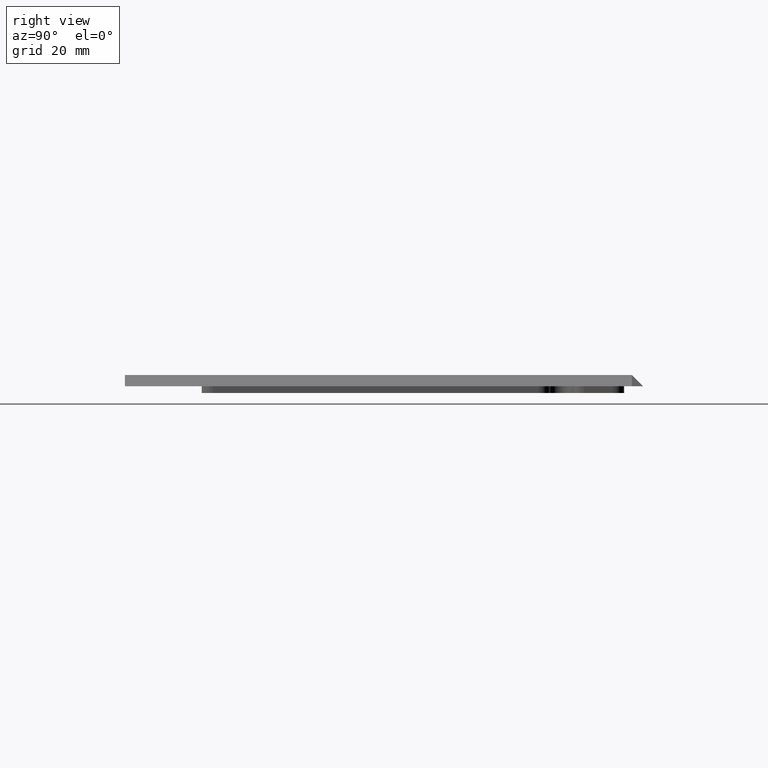
[diagram: clean part render]
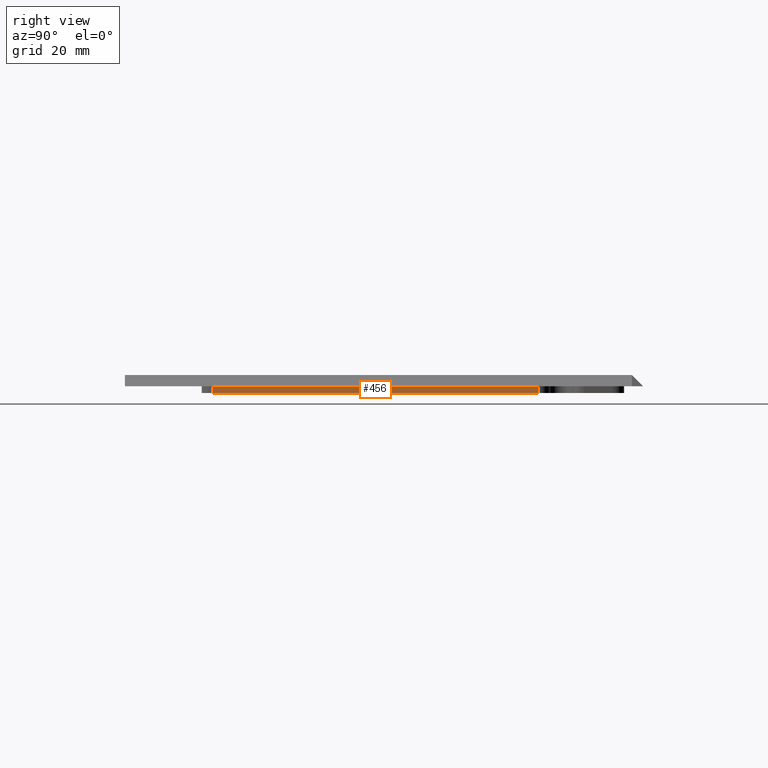
[diagram: same view with one face highlighted and labeled with its STEP entity id]
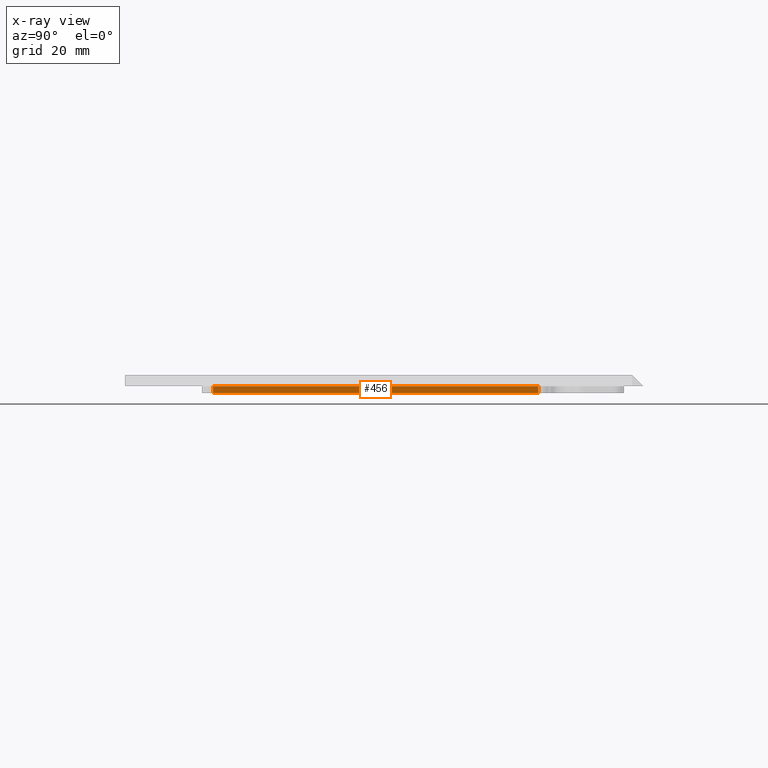
[diagram: x-ray of the same camera — body ghosted, the highlighted face saturated]
A machine part, right view. The second image highlights one B-rep face of the part: STEP entity #456.
The next image is the same camera in x-ray: the body ghosted, the highlighted face saturated — about 0% of this face is hidden behind the body in this view.
In plain terms, the highlighted planar face has unit normal (-1, -0, 0).
Its self-contained STEP definition (entity closure, byte-faithful):
#25 = FACE_OUTER_BOUND ( 'NONE', #1350, .T. ) ;
#72 = DIRECTION ( 'NONE',  ( 3.227392513445222800E-016, -1.000000000000000000, 0.0000000000000000000 ) ) ;
#120 = ORIENTED_EDGE ( 'NONE', *, *, #1183, .F. ) ;
#161 = VECTOR ( 'NONE', #876, 1000.000000000000000 ) ;
#201 = AXIS2_PLACEMENT_3D ( 'NONE', #353, #746, #1607 ) ;
#243 = DIRECTION ( 'NONE',  ( -0.0000000000000000000, -0.0000000000000000000, 1.000000000000000000 ) ) ;
#262 = VECTOR ( 'NONE', #1486, 1000.000000000000000 ) ;
#353 = CARTESIAN_POINT ( 'NONE',  ( 133.2499999999999700, 109.3499999999999900, -4.780000000000000200 ) ) ;
#456 = ADVANCED_FACE ( 'NONE', ( #25 ), #614, .F. ) ;
#458 = CARTESIAN_POINT ( 'NONE',  ( 133.2500000000000000, 23.34999999999999800, -4.780000000000000200 ) ) ;
#463 = EDGE_CURVE ( 'NONE', #904, #1455, #557, .T. ) ;
#506 = CARTESIAN_POINT ( 'NONE',  ( 133.2499999999999700, 109.3499999999999900, -3.000000000000000000 ) ) ;
#524 = EDGE_CURVE ( 'NONE', #1232, #1455, #959, .T. ) ;
#557 = LINE ( 'NONE', #867, #262 ) ;
#614 = PLANE ( 'NONE',  #201 ) ;
#701 = CARTESIAN_POINT ( 'NONE',  ( 133.2499999999999700, 109.3499999999999900, -4.780000000000000200 ) ) ;
#719 = EDGE_CURVE ( 'NONE', #1413, #904, #1366, .T. ) ;
#746 = DIRECTION ( 'NONE',  ( -1.000000000000000000, -3.227392513445222800E-016, 0.0000000000000000000 ) ) ;
#760 = VECTOR ( 'NONE', #72, 1000.000000000000000 ) ;
#867 = CARTESIAN_POINT ( 'NONE',  ( 133.2499999999999700, 109.3499999999999900, -3.000000000000000000 ) ) ;
#876 = DIRECTION ( 'NONE',  ( -0.0000000000000000000, -0.0000000000000000000, 1.000000000000000000 ) ) ;
#904 = VERTEX_POINT ( 'NONE', #506 ) ;
#939 = ORIENTED_EDGE ( 'NONE', *, *, #719, .T. ) ;
#959 = LINE ( 'NONE', #1377, #1522 ) ;
#1045 = LINE ( 'NONE', #1568, #760 ) ;
#1183 = EDGE_CURVE ( 'NONE', #1413, #1232, #1045, .T. ) ;
#1209 = ORIENTED_EDGE ( 'NONE', *, *, #524, .F. ) ;
#1232 = VERTEX_POINT ( 'NONE', #458 ) ;
#1350 = EDGE_LOOP ( 'NONE', ( #1398, #1209, #120, #939 ) ) ;
#1366 = LINE ( 'NONE', #1615, #161 ) ;
#1377 = CARTESIAN_POINT ( 'NONE',  ( 133.2500000000000000, 23.34999999999999800, -4.780000000000000200 ) ) ;
#1398 = ORIENTED_EDGE ( 'NONE', *, *, #463, .T. ) ;
#1413 = VERTEX_POINT ( 'NONE', #701 ) ;
#1455 = VERTEX_POINT ( 'NONE', #1462 ) ;
#1462 = CARTESIAN_POINT ( 'NONE',  ( 133.2500000000000000, 23.34999999999999800, -3.000000000000000000 ) ) ;
#1486 = DIRECTION ( 'NONE',  ( 3.227392513445222800E-016, -1.000000000000000000, 0.0000000000000000000 ) ) ;
#1522 = VECTOR ( 'NONE', #243, 1000.000000000000000 ) ;
#1568 = CARTESIAN_POINT ( 'NONE',  ( 133.2499999999999700, 109.3499999999999900, -4.780000000000000200 ) ) ;
#1607 = DIRECTION ( 'NONE',  ( 3.227392513445222800E-016, -1.000000000000000000, 0.0000000000000000000 ) ) ;
#1615 = CARTESIAN_POINT ( 'NONE',  ( 133.2499999999999700, 109.3499999999999900, -4.780000000000000200 ) ) ;